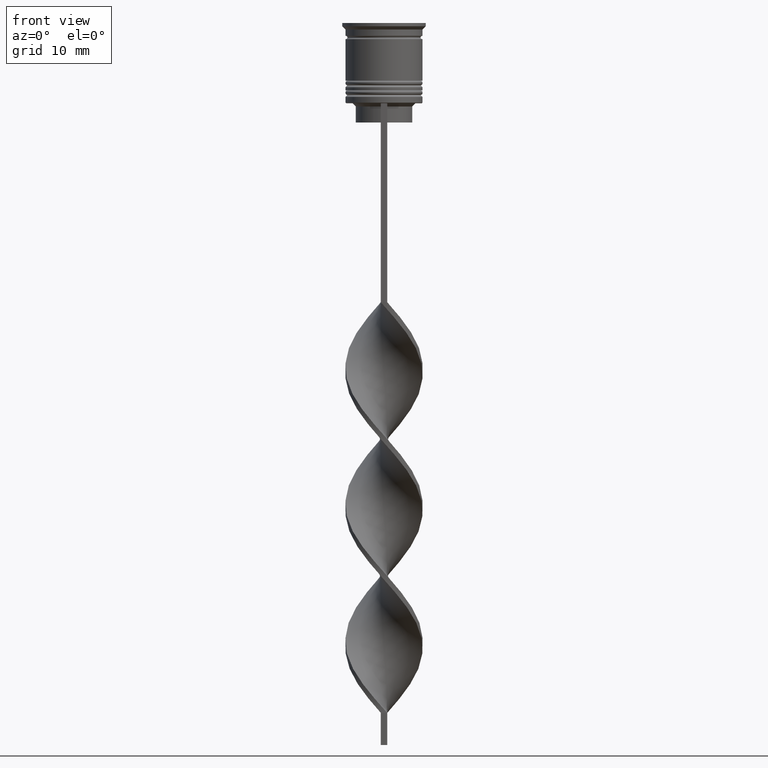
[diagram: clean part render]
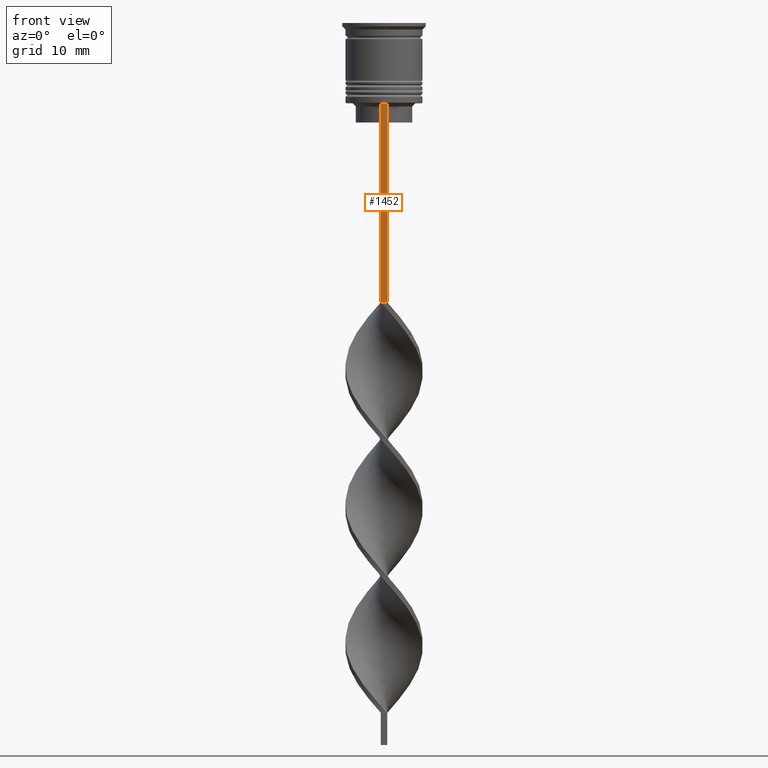
[diagram: same view with one face highlighted and labeled with its STEP entity id]
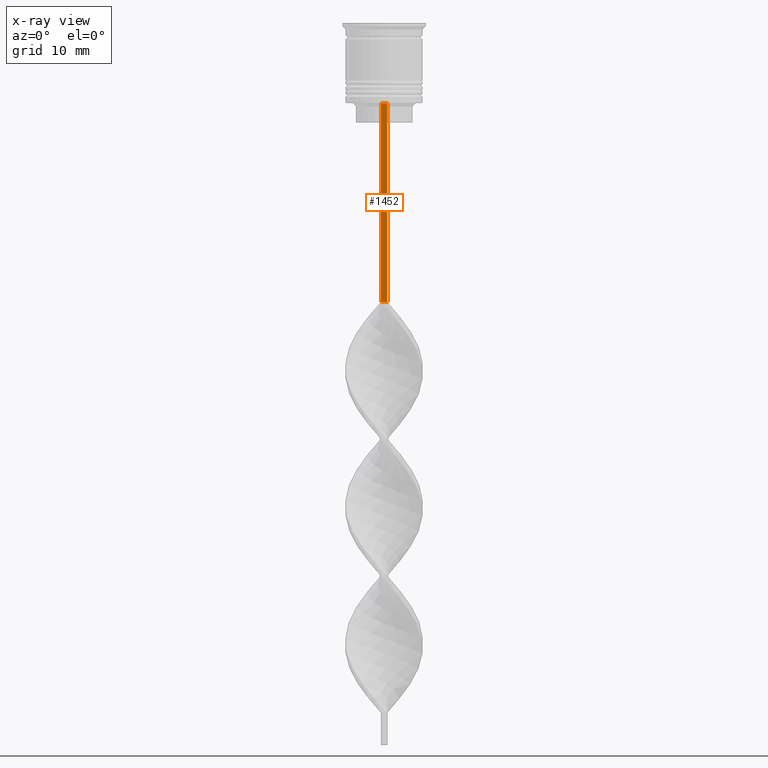
[diagram: x-ray of the same camera — body ghosted, the highlighted face saturated]
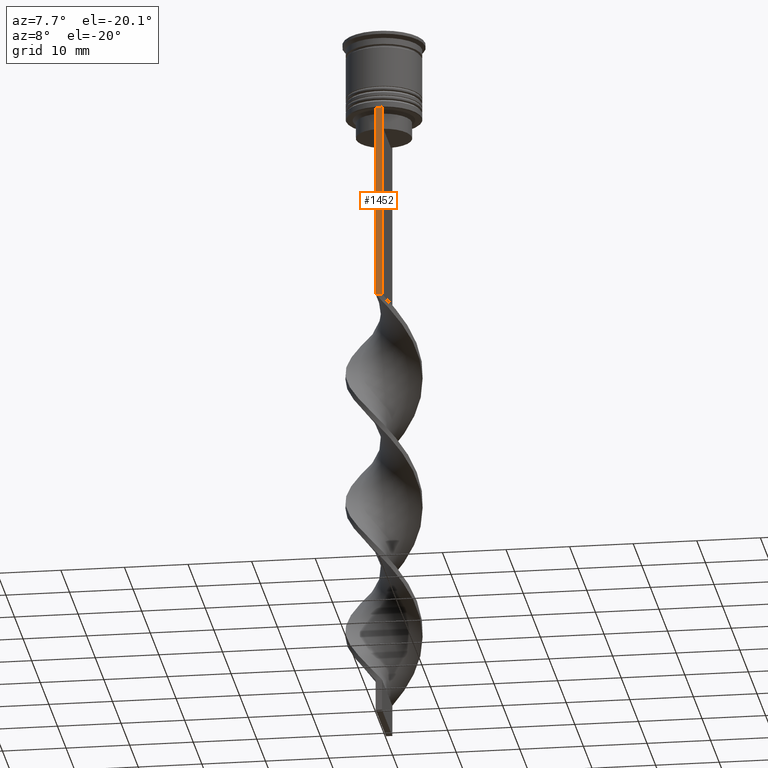
[diagram: same view with one face highlighted and labeled with its STEP entity id]
A machine part, front view. The second image highlights one B-rep face of the part: STEP entity #1452.
The next image is the same camera in x-ray: the body ghosted, the highlighted face saturated — about 0% of this face is hidden behind the body in this view.
A second angle (auxiliary view) of the same face is appended — the face is thin or edge-on in the first view.
In plain terms, the highlighted planar face has unit normal (0, -1, -0).
Its self-contained STEP definition (entity closure, byte-faithful):
#192 = VECTOR ( 'NONE', #609, 1000.000000000000000 ) ;
#239 = VECTOR ( 'NONE', #2524, 1000.000000000000000 ) ;
#289 = ORIENTED_EDGE ( 'NONE', *, *, #586, .T. ) ;
#426 = CARTESIAN_POINT ( 'NONE',  ( -0.4999999999999997780, -6.000000000000000000, -43.50000000000000000 ) ) ;
#491 = CARTESIAN_POINT ( 'NONE',  ( -0.4999999999999997780, -6.000000000000000000, -12.50000000000000000 ) ) ;
#509 = ORIENTED_EDGE ( 'NONE', *, *, #985, .F. ) ;
#586 = EDGE_CURVE ( 'NONE', #2204, #2082, #1411, .T. ) ;
#605 = PLANE ( 'NONE',  #2343 ) ;
#609 = DIRECTION ( 'NONE',  ( 0.000000000000000000, 0.000000000000000000, -1.000000000000000000 ) ) ;
#892 = FACE_OUTER_BOUND ( 'NONE', #3251, .T. ) ;
#967 = DIRECTION ( 'NONE',  ( 1.000000000000000000, 0.000000000000000000, 0.000000000000000000 ) ) ;
#985 = EDGE_CURVE ( 'NONE', #2462, #2082, #2759, .T. ) ;
#1246 = LINE ( 'NONE', #3490, #2394 ) ;
#1411 = LINE ( 'NONE', #2269, #239 ) ;
#1452 = ADVANCED_FACE ( 'NONE', ( #892 ), #605, .T. ) ;
#1490 = DIRECTION ( 'NONE',  ( 0.000000000000000000, -1.000000000000000000, -0.000000000000000000 ) ) ;
#1781 = CARTESIAN_POINT ( 'NONE',  ( 0.5000000000000002220, -6.000000000000000000, -0.4584054212077061097 ) ) ;
#1978 = LINE ( 'NONE', #1781, #192 ) ;
#2051 = EDGE_CURVE ( 'NONE', #2204, #2600, #1246, .T. ) ;
#2082 = VERTEX_POINT ( 'NONE', #426 ) ;
#2154 = CARTESIAN_POINT ( 'NONE',  ( 0.5000000000000002220, -6.000000000000000000, -43.50000000000000000 ) ) ;
#2204 = VERTEX_POINT ( 'NONE', #491 ) ;
#2220 = VECTOR ( 'NONE', #2991, 1000.000000000000000 ) ;
#2269 = CARTESIAN_POINT ( 'NONE',  ( -0.4999999999999997780, -6.000000000000000000, -0.4584054212077061097 ) ) ;
#2306 = CARTESIAN_POINT ( 'NONE',  ( 0.5000000000000002220, -6.000000000000000000, -0.4584054212077061097 ) ) ;
#2343 = AXIS2_PLACEMENT_3D ( 'NONE', #2306, #1490, #2525 ) ;
#2381 = CARTESIAN_POINT ( 'NONE',  ( 0.5000000000000002220, -6.000000000000000000, -12.50000000000000000 ) ) ;
#2394 = VECTOR ( 'NONE', #967, 1000.000000000000000 ) ;
#2462 = VERTEX_POINT ( 'NONE', #2601 ) ;
#2524 = DIRECTION ( 'NONE',  ( 0.000000000000000000, 0.000000000000000000, -1.000000000000000000 ) ) ;
#2525 = DIRECTION ( 'NONE',  ( 0.000000000000000000, 0.000000000000000000, -1.000000000000000000 ) ) ;
#2600 = VERTEX_POINT ( 'NONE', #2381 ) ;
#2601 = CARTESIAN_POINT ( 'NONE',  ( 0.5000000000000002220, -5.999999999999999112, -43.50000000000000000 ) ) ;
#2759 = LINE ( 'NONE', #2154, #2220 ) ;
#2991 = DIRECTION ( 'NONE',  ( -1.000000000000000000, 0.000000000000000000, 0.000000000000000000 ) ) ;
#3024 = ORIENTED_EDGE ( 'NONE', *, *, #2051, .F. ) ;
#3188 = ORIENTED_EDGE ( 'NONE', *, *, #3546, .F. ) ;
#3251 = EDGE_LOOP ( 'NONE', ( #3024, #289, #509, #3188 ) ) ;
#3490 = CARTESIAN_POINT ( 'NONE',  ( 0.5000000000000002220, -6.000000000000000000, -12.50000000000000000 ) ) ;
#3546 = EDGE_CURVE ( 'NONE', #2600, #2462, #1978, .T. ) ;